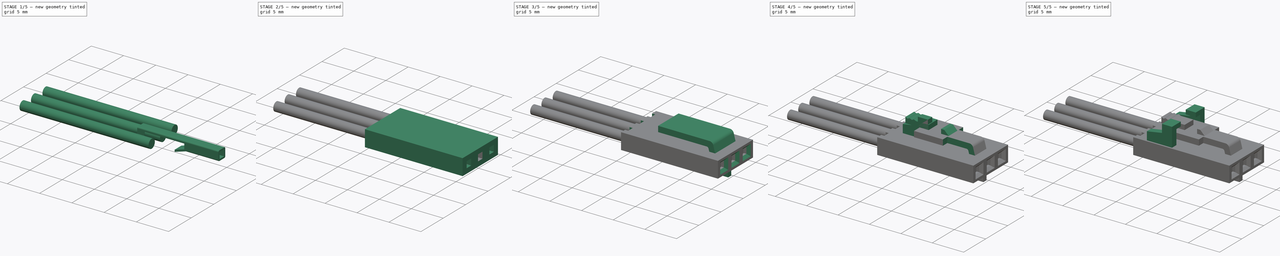
[diagram: build sequence overview — one tinted view per stage of 5, left to right]
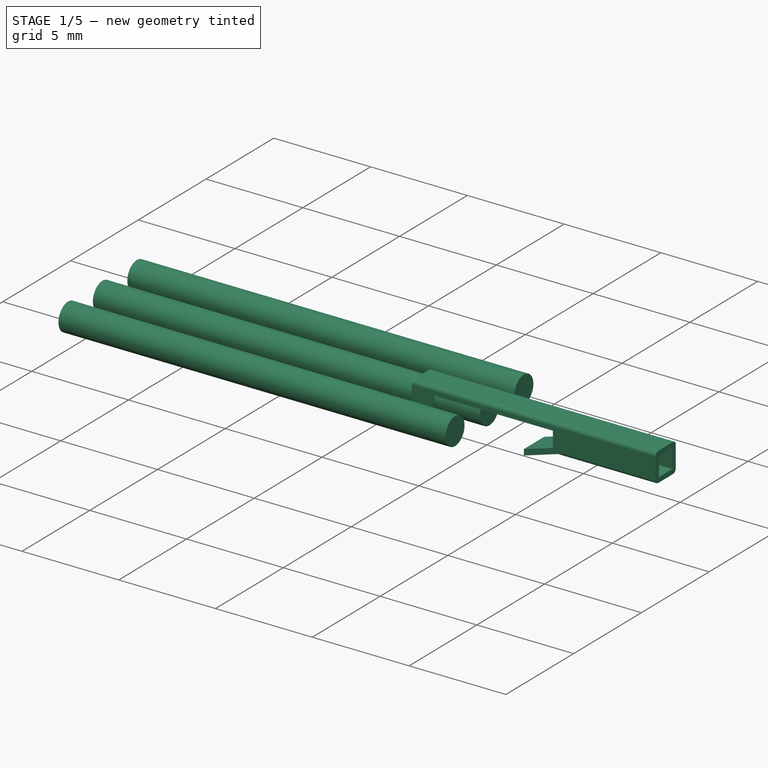
[diagram: stage 1 of 5 — iso view after this stage's code; geometry added in this stage tinted green]
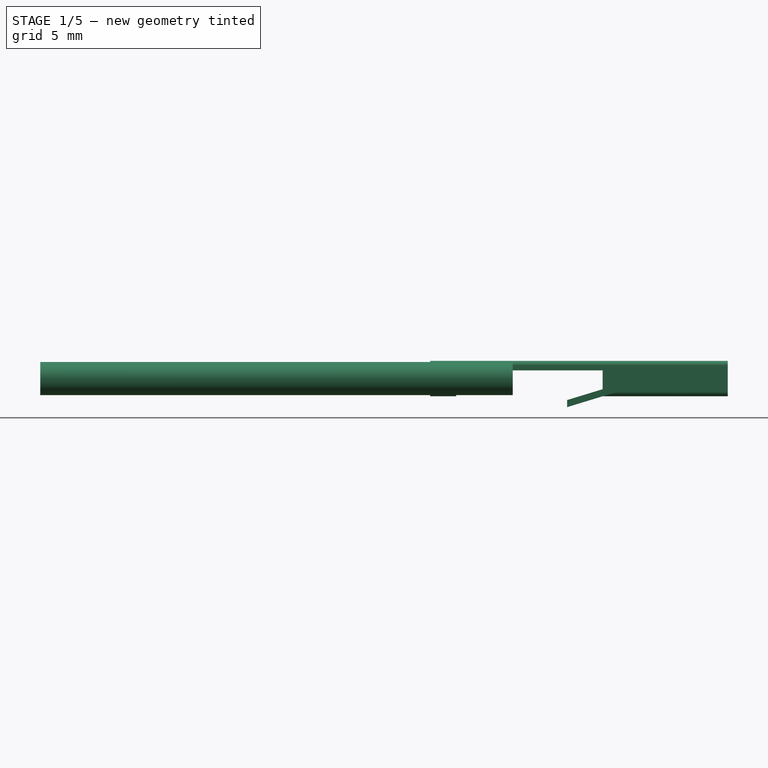
[diagram: stage 1 of 5 — front view after this stage's code; geometry added in this stage tinted green]
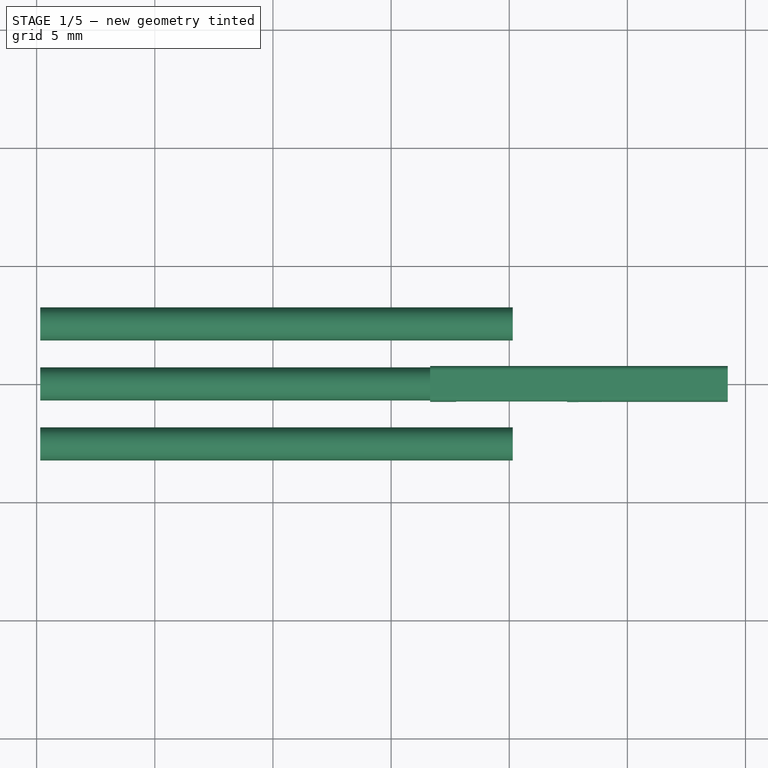
[diagram: stage 1 of 5 — top view after this stage's code; geometry added in this stage tinted green]
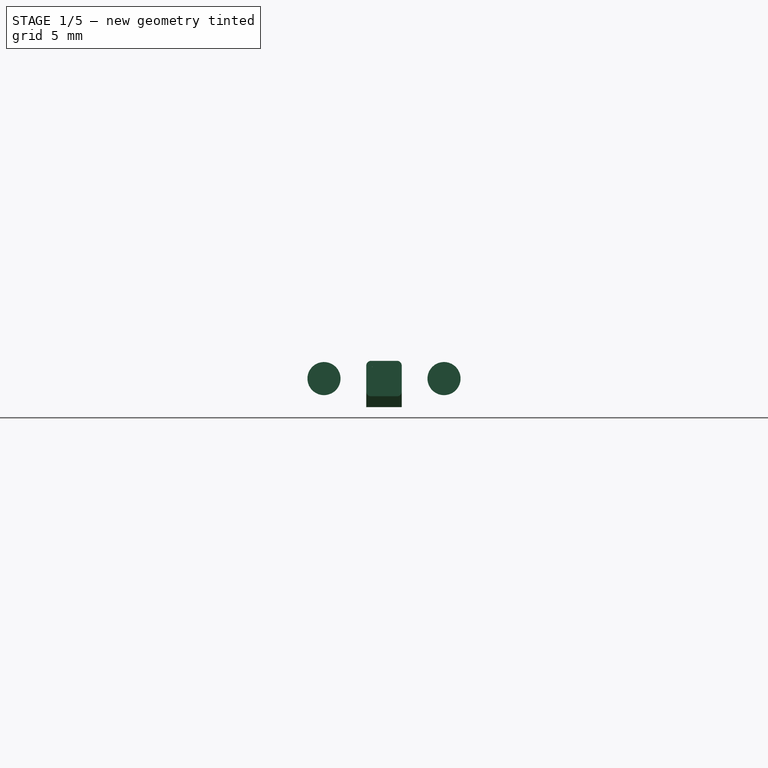
[diagram: stage 1 of 5 — right view after this stage's code; geometry added in this stage tinted green]
FCSTD DOCUMENT  (FreeCAD 0.16R6707 (Git))
Label: 3pin-buckled-female-2.54mm-connector
License: All rights reserved
LicenseURL: http://en.wikipedia.org/wiki/All_rights_reserved
objects: Sketcher::SketchObject×17, PartDesign::Pocket×9, Part::FeaturePython×9, PartDesign::Pad×8, App::DocumentObjectGroup×5, Part::MultiFuse×3, Part::Cylinder×3, Part::Mirroring×1, PartDesign::Chamfer×1, PartDesign::Fillet×1
note: 69 computed .brp shape members not serialized (recipe doc carries the construction recipe); baked Part::Feature solids carry a one-line shape summary decoded from their .brp

FEATURE [Sketcher::SketchObject] Sketch014
  Placement = pos=(0,0,0) rot=(-1,0,0;4.71239rad)
  sketch-geometry (11):
    g0: LineSegment StartX=8.95 StartY=-0.75 StartZ=0 EndX=14.25 EndY=-0.75 EndZ=0
    g1: LineSegment StartX=14.25 StartY=-0.75 StartZ=0 EndX=14.25 EndY=0.75 EndZ=0
    g2: LineSegment StartX=14.25 StartY=0.75 StartZ=0 EndX=1.65 EndY=0.75 EndZ=0
    g3: LineSegment StartX=1.65 StartY=0.75 StartZ=0 EndX=1.65 EndY=-0.75 EndZ=0
    g4: LineSegment StartX=1.65 StartY=-0.75 StartZ=0 EndX=2.75 EndY=-0.75 EndZ=0
    g5: LineSegment StartX=2.75 StartY=-0.75 StartZ=0 EndX=2.75 EndY=0.35 EndZ=0
    g6: LineSegment StartX=2.75 StartY=0.35 StartZ=0 EndX=8.95 EndY=0.35 EndZ=0
    g7: LineSegment StartX=8.95 StartY=0.35 StartZ=0 EndX=8.95 EndY=-0.45 EndZ=0
    g8: LineSegment StartX=8.95 StartY=-0.45 StartZ=0 EndX=7.45 EndY=-0.908596 EndZ=0
    g9: LineSegment StartX=7.45 StartY=-0.908596 StartZ=0 EndX=7.45 EndY=-1.2086 EndZ=0
    g10: LineSegment StartX=7.45 StartY=-1.2086 StartZ=0 EndX=8.95 EndY=-0.75 EndZ=0
  constraints (33):
    c: Horizontal(g0)
    c: Coincident(g0,g1)
    c: Vertical(g1)
    c: Coincident(g1,g2)
    c: Horizontal(g2)
    c: Coincident(g2,g3)
    c: Coincident(g3,g4)
    c: Horizontal(g4)
    c: Coincident(g4,g5)
    c: Coincident(g5,g6)
    c: Horizontal(g6)
    c: Coincident(g6,g7)
    c: Vertical(g7)
    c: Coincident(g7,g8)
    c: Coincident(g8,g9)
    c: Vertical(g9)
    c: Coincident(g9,g10)
    c: Coincident(g10,g0)
    c: DistanceY(g1,g1) = 1.5
    c: DistanceX(g2,g2) = 12.6
    c: Vertical(g3)
    c: Symmetric(g1,g0,g-1)
    c: PointOnObject(g0,g7)
    c: Parallel(g10,g8)
    c: DistanceY(g5,g2) = 0.4
    c: DistanceY(g3,g3) = 1.5
    c: Vertical(g5)
    c: DistanceX(g4,g4) = 1.1
    c: DistanceY(g0,g7) = 0.3
    c: DistanceX(g8,g7) = 1.5
    c: Angle(g10,g0) = 2.84489
    c: DistanceX(g4,g8) = 4.7
    c: DistanceX(g-1,g9) = 7.45
FEATURE [PartDesign::Pad] Pad007
  Length = 1.5
  Length2 = 100
  Midplane = true
  Placement = pos=(0,0,0) rot=(-1,0,0;4.71239rad)
  Sketch = -> Sketch014
  Type = 0
FEATURE [Sketcher::SketchObject] Sketch015
  ExternalGeometry = -> [Pad007]
  Placement = pos=(14.25,0,0) rot=(0.707107,0,0.707107;3.14159rad)
  Support = -> Pad007 [Face2]
  sketch-geometry (4):
    g0: LineSegment StartX=-0.5 StartY=0.5 StartZ=0 EndX=0.5 EndY=0.5 EndZ=0
    g1: LineSegment StartX=0.5 StartY=0.5 StartZ=0 EndX=0.5 EndY=-0.5 EndZ=0
    g2: LineSegment StartX=0.5 StartY=-0.5 StartZ=0 EndX=-0.5 EndY=-0.5 EndZ=0
    g3: LineSegment StartX=-0.5 StartY=-0.5 StartZ=0 EndX=-0.5 EndY=0.5 EndZ=0
  constraints (11):
    c: Coincident(g0,g1)
    c: Coincident(g1,g2)
    c: Coincident(g2,g3)
    c: Coincident(g3,g0)
    c: Horizontal(g0)
    c: Horizontal(g2)
    c: Vertical(g1)
    c: Vertical(g3)
    c: Symmetric(g0,g1,g-1)
    c: Equal(g3,g0)
    c: DistanceX(g-4,g0) = 0.25
FEATURE [PartDesign::Pocket] Pocket007
  Length = 5
  Placement = pos=(0,0,0) rot=(-1,0,0;4.71239rad)
  Sketch = -> Sketch015
  Type = 1
FEATURE [PartDesign::Fillet] Fillet  label="pin-final"
  Base = -> Pocket007 [Edge3,Edge4,Edge23,Edge15,Edge25,Edge17]
  Placement = pos=(0,0,0) rot=(-1,0,0;4.71239rad)
  Radius = 0.2
FEATURE [Part::FeaturePython] Clone005  label="pin1"  # Draft clone (typed FeaturePython)
  Objects = -> [Fillet]
  Placement = pos=(0,0,0) rot=(-1,0,0;4.71239rad)
  Scale = (1,1,1)
FEATURE [Part::Cylinder] Cylinder  label="vcc-wire"
  Angle = 360
  Height = 20
  Placement = pos=(5.15,0,0) rot=(0,-1,0;1.5708rad)
  Radius = 0.7
  expr: Radius = 1.4 / 2
FEATURE [Part::Cylinder] Cylinder001  label="vcc-signal"
  Angle = 360
  Height = 20
  Placement = pos=(5.15,2.54,0) rot=(0,-1,0;1.5708rad)
  Radius = 0.7
  expr: Radius = 1.4 / 2
FEATURE [Part::Cylinder] Cylinder002  label="wire-gnd"
  Angle = 360
  Height = 20
  Placement = pos=(5.15,-2.54,0) rot=(0,-1,0;1.5708rad)
  Radius = 0.7
  expr: Radius = 1.4 / 2
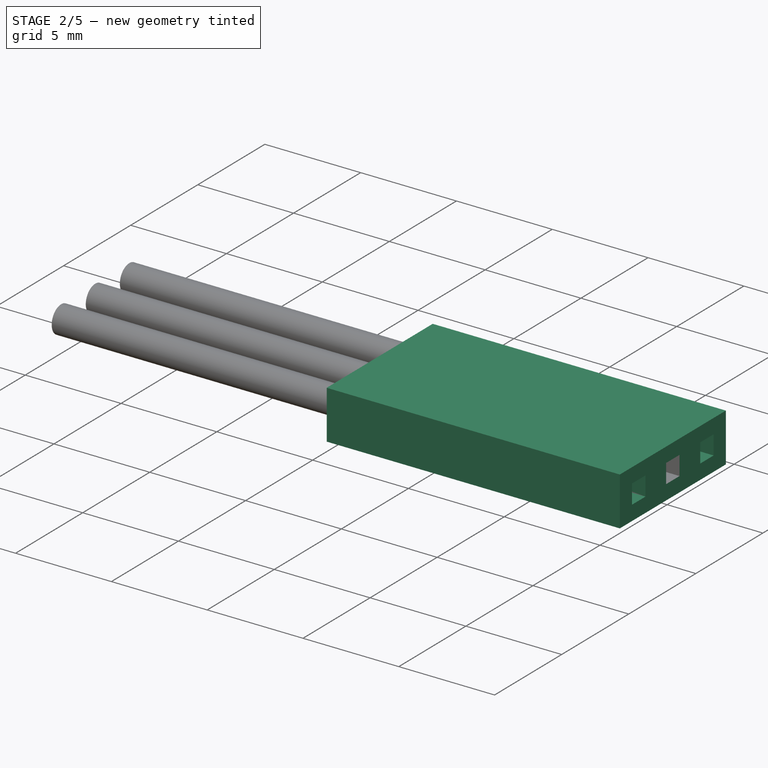
[diagram: stage 2 of 5 — iso view after this stage's code; geometry added in this stage tinted green]
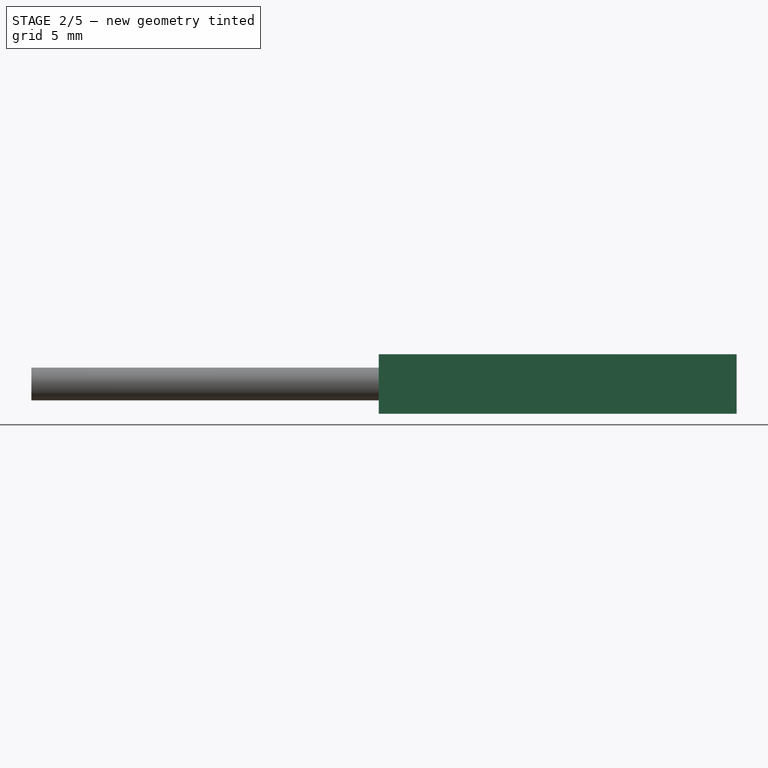
[diagram: stage 2 of 5 — front view after this stage's code; geometry added in this stage tinted green]
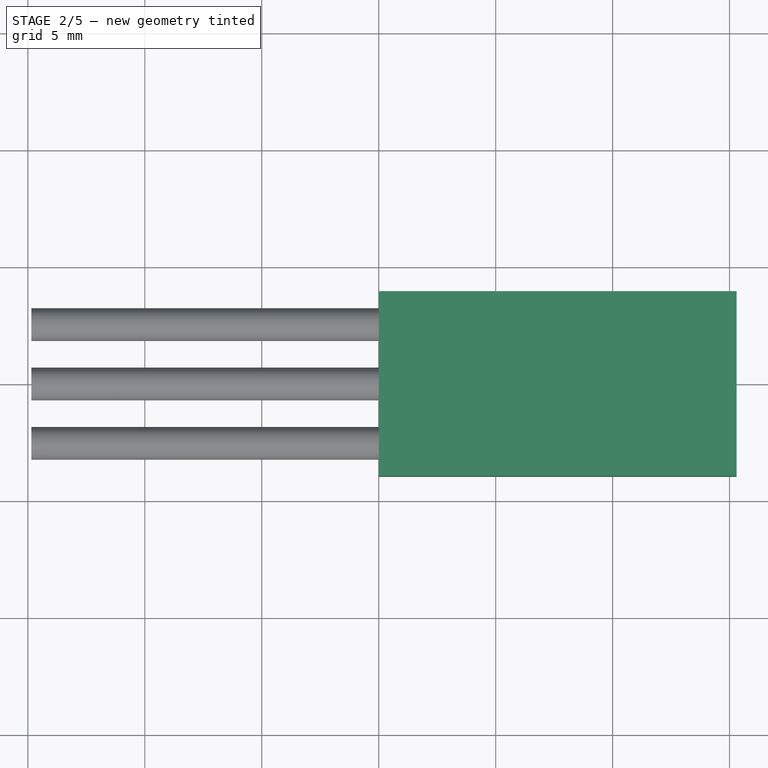
[diagram: stage 2 of 5 — top view after this stage's code; geometry added in this stage tinted green]
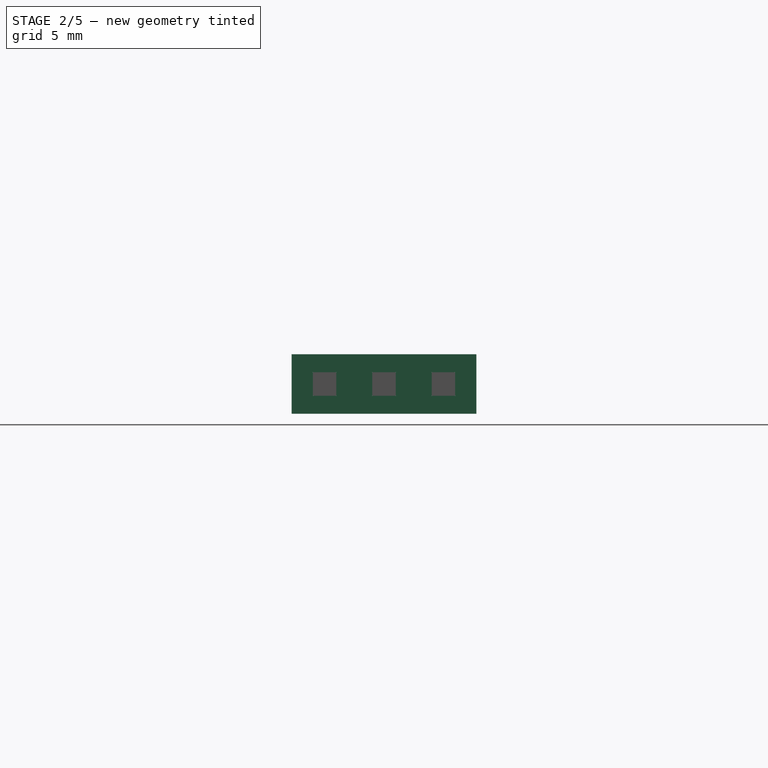
[diagram: stage 2 of 5 — right view after this stage's code; geometry added in this stage tinted green]
FEATURE [Sketcher::SketchObject] Sketch  label="Connector-body-sketch"
  sketch-geometry (4):
    g0: LineSegment StartX=0 StartY=3.95 StartZ=0 EndX=15.3 EndY=3.95 EndZ=0
    g1: LineSegment StartX=15.3 StartY=3.95 StartZ=0 EndX=15.3 EndY=-3.95 EndZ=0
    g2: LineSegment StartX=15.3 StartY=-3.95 StartZ=0 EndX=0 EndY=-3.95 EndZ=0
    g3: LineSegment StartX=0 StartY=-3.95 StartZ=0 EndX=0 EndY=3.95 EndZ=0
  constraints (12):
    c: Coincident(g0,g1)
    c: Coincident(g1,g2)
    c: Coincident(g2,g3)
    c: Coincident(g3,g0)
    c: Horizontal(g0)
    c: Horizontal(g2)
    c: Vertical(g1)
    c: Vertical(g3)
    c: PointOnObject(g0,g-2)
    c: Symmetric(g0,g2,g-1)
    c: DistanceY(g1,g1) = 7.9
    c: DistanceX(g0,g0) = 15.3
FEATURE [PartDesign::Pad] Pad  label="Connector-body1"
  Length = 2.54
  Length2 = 100
  Midplane = true
  Sketch = -> Sketch
  Type = 0
FEATURE [Sketcher::SketchObject] Sketch001  label="female-cutout-sketch"
  Placement = pos=(15.3,0,0) rot=(0.57735,0.57735,0.57735;2.0944rad)
  Support = -> Pad [Face2]
  sketch-geometry (13):
    g0: LineSegment StartX=-0.5 StartY=0.5 StartZ=0 EndX=0.5 EndY=0.5 EndZ=0
    g1: LineSegment StartX=0.5 StartY=0.5 StartZ=0 EndX=0.5 EndY=-0.5 EndZ=0
    g2: LineSegment StartX=0.5 StartY=-0.5 StartZ=0 EndX=-0.5 EndY=-0.5 EndZ=0
    g3: LineSegment StartX=-0.5 StartY=-0.5 StartZ=0 EndX=-0.5 EndY=0.5 EndZ=0
    g4: LineSegment StartX=-3.04 StartY=0.5 StartZ=0 EndX=-2.04 EndY=0.5 EndZ=0
    g5: LineSegment StartX=-2.04 StartY=0.5 StartZ=0 EndX=-2.04 EndY=-0.5 EndZ=0
    g6: LineSegment StartX=-2.04 StartY=-0.5 StartZ=0 EndX=-3.04 EndY=-0.5 EndZ=0
    g7: LineSegment StartX=-3.04 StartY=-0.5 StartZ=0 EndX=-3.04 EndY=0.5 EndZ=0
    g8: LineSegment StartX=2.04 StartY=0.5 StartZ=0 EndX=3.04 EndY=0.5 EndZ=0
    g9: LineSegment StartX=3.04 StartY=0.5 StartZ=0 EndX=3.04 EndY=-0.5 EndZ=0
    g10: LineSegment StartX=3.04 StartY=-0.5 StartZ=0 EndX=2.04 EndY=-0.5 EndZ=0
    g11: LineSegment StartX=2.04 StartY=-0.5 StartZ=0 EndX=2.04 EndY=0.5 EndZ=0
    g12: LineSegment [constr] StartX=-2.54 StartY=0.5 StartZ=0 EndX=-2.54 EndY=-0.5 EndZ=0
  constraints (38):
    c: Coincident(g0,g1)
    c: Coincident(g1,g2)
    c: Coincident(g2,g3)
    c: Coincident(g3,g0)
    c: Horizontal(g0)
    c: Horizontal(g2)
    c: Vertical(g1)
    c: Vertical(g3)
    c: Symmetric(g0,g1,g-1)
    c: Equal(g0,g1)
    c: DistanceY(g1,g1) = 1
    c: Coincident(g4,g5)
    c: Coincident(g5,g6)
    c: Coincident(g6,g7)
    c: Coincident(g7,g4)
    c: Horizontal(g4)
    c: Horizontal(g6)
    c: Vertical(g5)
    c: Vertical(g7)
    c: Coincident(g8,g9)
    c: Coincident(g9,g10)
    c: Coincident(g10,g11)
    c: Coincident(g11,g8)
    c: Horizontal(g8)
    c: Horizontal(g10)
    c: Vertical(g9)
    c: Vertical(g11)
    c: Equal(g4,g0)
    c: Equal(g0,g7)
    c: Symmetric(g4,g5,g-1)
    c: PointOnObject(g12,g4)
    c: PointOnObject(g12,g6)
    c: Vertical(g12)
    c: Symmetric(g4,g4,g12)
    c: DistanceX(g12,g-1) = 2.54
    c: Equal(g11,g8)
    c: Equal(g8,g0)
    c: Symmetric(g5,g10,g-2)
FEATURE [PartDesign::Pocket] Pocket  label="body2-with-female-holes"
  Length = 5
  Sketch = -> Sketch001
  Type = 1
FEATURE [Sketcher::SketchObject] Sketch010
  Placement = pos=(0,0,-1.27) rot=(1,0,0;3.14159rad)
  Support = -> Pocket [Face4]
  sketch-geometry (24):
    g0: LineSegment StartX=7.45 StartY=0.5 StartZ=0 EndX=8.9 EndY=0.5 EndZ=0
    g1: LineSegment StartX=8.9 StartY=0.5 StartZ=0 EndX=8.9 EndY=-0.5 EndZ=0
    g2: LineSegment StartX=8.9 StartY=-0.5 StartZ=0 EndX=7.45 EndY=-0.5 EndZ=0
    g3: LineSegment StartX=7.45 StartY=-0.5 StartZ=0 EndX=7.45 EndY=0.5 EndZ=0
    g4: LineSegment StartX=0.75 StartY=0.5 StartZ=0 EndX=1.45 EndY=0.5 EndZ=0
    g5: LineSegment StartX=1.45 StartY=0.5 StartZ=0 EndX=1.45 EndY=-0.5 EndZ=0
    g6: LineSegment StartX=1.45 StartY=-0.5 StartZ=0 EndX=0.75 EndY=-0.5 EndZ=0
    g7: LineSegment StartX=0.75 StartY=-0.5 StartZ=0 EndX=0.75 EndY=0.5 EndZ=0
    g8: LineSegment StartX=0.75 StartY=-2.05 StartZ=0 EndX=1.45 EndY=-2.05 EndZ=0
    g9: LineSegment StartX=1.45 StartY=-2.05 StartZ=0 EndX=1.45 EndY=-3.05 EndZ=0
    g10: LineSegment StartX=1.45 StartY=-3.05 StartZ=0 EndX=0.75 EndY=-3.05 EndZ=0
    g11: LineSegment StartX=0.75 StartY=-3.05 StartZ=0 EndX=0.75 EndY=-2.05 EndZ=0
    g12: LineSegment StartX=7.45 StartY=-2.05 StartZ=0 EndX=8.9 EndY=-2.05 EndZ=0
    g13: LineSegment StartX=8.9 StartY=-2.05 StartZ=0 EndX=8.9 EndY=-3.05 EndZ=0
    g14: LineSegment StartX=8.9 StartY=-3.05 StartZ=0 EndX=7.45 EndY=-3.05 EndZ=0
    g15: LineSegment StartX=7.45 StartY=-3.05 StartZ=0 EndX=7.45 EndY=-2.05 EndZ=0
    g16: LineSegment StartX=0.75 StartY=3.05 StartZ=0 EndX=1.45 EndY=3.05 EndZ=0
    g17: LineSegment StartX=1.45 StartY=3.05 StartZ=0 EndX=1.45 EndY=2.05 EndZ=0
    g18: LineSegment StartX=1.45 StartY=2.05 StartZ=0 EndX=0.75 EndY=2.05 EndZ=0
    g19: LineSegment StartX=0.75 StartY=2.05 StartZ=0 EndX=0.75 EndY=3.05 EndZ=0
    g20: LineSegment StartX=7.45 StartY=3.05 StartZ=0 EndX=8.9 EndY=3.05 EndZ=0
    g21: LineSegment StartX=8.9 StartY=3.05 StartZ=0 EndX=8.9 EndY=2.05 EndZ=0
    g22: LineSegment StartX=8.9 StartY=2.05 StartZ=0 EndX=7.45 EndY=2.05 EndZ=0
    g23: LineSegment StartX=7.45 StartY=2.05 StartZ=0 EndX=7.45 EndY=3.05 EndZ=0
  constraints (69):
    c: Coincident(g0,g1)
    c: Coincident(g1,g2)
    c: Coincident(g2,g3)
    c: Coincident(g3,g0)
    c: Horizontal(g0)
    c: Horizontal(g2)
    c: Vertical(g1)
    c: Vertical(g3)
    c: Coincident(g4,g5)
    c: Coincident(g5,g6)
    c: Coincident(g6,g7)
    c: Coincident(g7,g4)
    c: Horizontal(g4)
    c: Horizontal(g6)
    c: Vertical(g5)
    c: Vertical(g7)
    c: Symmetric(g0,g2,g-1)
    c: DistanceY(g1,g1) = 1
    c: DistanceX(g2,g2) = 1.45
    c: DistanceX(g4,g4) = 0.7
    c: Equal(g5,g1)
    c: Symmetric(g4,g5,g-1)
    c: DistanceX(g-1,g4) = 0.75
    c: DistanceX(g5,g2) = 6
    c: Coincident(g8,g9)
    c: Coincident(g9,g10)
    c: Coincident(g10,g11)
    c: Coincident(g11,g8)
    c: Horizontal(g8)
    c: Horizontal(g10)
    c: Vertical(g9)
    c: Vertical(g11)
    c: Coincident(g12,g13)
    c: Coincident(g13,g14)
    c: Coincident(g14,g15)
    c: Coincident(g15,g12)
    c: Horizontal(g12)
    c: Horizontal(g14)
    c: Vertical(g13)
    c: Vertical(g15)
    c: Equal(g2,g12)
    c: Equal(g1,g13)
    c: Equal(g13,g9)
    c: Equal(g11,g7)
    c: PointOnObject(g8,g7)
    c: Equal(g8,g6)
    c: PointOnObject(g12,g3)
    c: DistanceY(g12,g2) = 1.55
    c: PointOnObject(g8,g12)
    c: Coincident(g16,g17)
    c: Coincident(g17,g18)
    c: Coincident(g18,g19)
    c: Coincident(g19,g16)
    c: Horizontal(g16)
    c: Horizontal(g18)
    c: Vertical(g17)
    c: Vertical(g19)
    c: Coincident(g20,g21)
    c: Coincident(g21,g22)
    c: Coincident(g22,g23)
    c: Coincident(g23,g20)
    c: Horizontal(g20)
    c: Horizontal(g22)
    c: Vertical(g21)
    c: Vertical(g23)
    c: Symmetric(g21,g12,g-1)
    c: Symmetric(g20,g14,g-1)
    c: Symmetric(g16,g9,g-1)
    c: Symmetric(g18,g8,g-1)
FEATURE [PartDesign::Pocket] Pocket004  label="bottom-cutouts"
  Length = 5
  Sketch = -> Sketch010
  Type = 2
FEATURE [Part::FeaturePython] Clone006  label="pin2"  # Draft clone (typed FeaturePython)
  Objects = -> [Clone005]
  Placement = pos=(0,2.54,0) rot=(-1,0,0;4.71239rad)
  Scale = (1,1,1)
FEATURE [Part::FeaturePython] Clone007  label="pin3"  # Draft clone (typed FeaturePython)
  Objects = -> [Clone005]
  Placement = pos=(0,-2.54,0) rot=(-1,0,0;4.71239rad)
  Scale = (1,1,1)
FEATURE [Part::MultiFuse] Fusion002  label="pins-final"
  Shapes = -> [Clone005,Clone006,Clone007]
FEATURE [App::DocumentObjectGroup] Grupo004  label="Pins-src"
  Group = -> [Fillet,Pocket007,Pad007,Fusion002]
FEATURE [App::DocumentObjectGroup] Grupo  label="src"
  Group = -> [Grupo001,Grupo002,Grupo003,Grupo004,Fusion001]
FEATURE [Part::FeaturePython] Clone008  label="pins"  # Draft clone (typed FeaturePython)
  Objects = -> [Fusion002]
  Scale = (1,1,1)
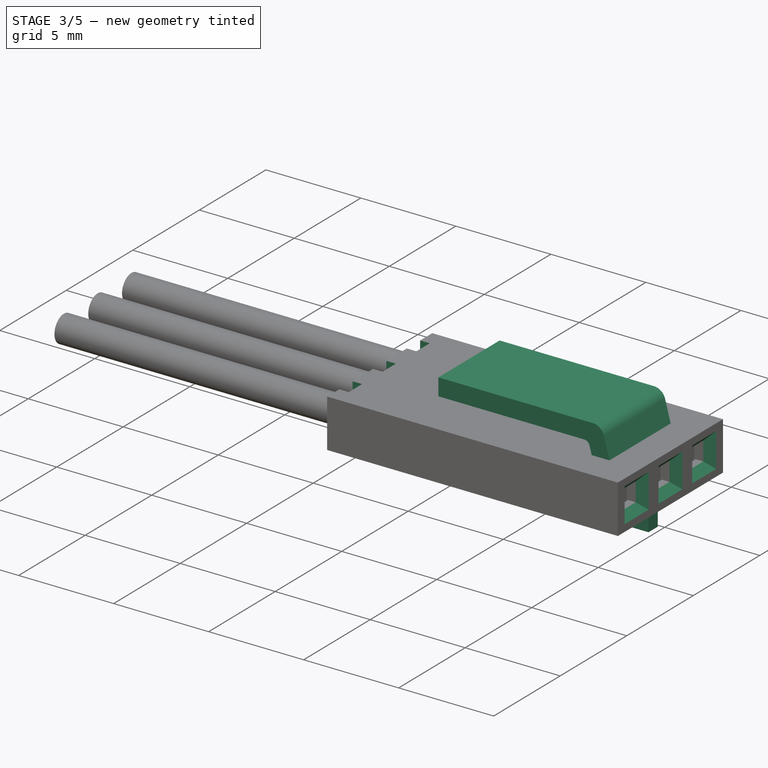
[diagram: stage 3 of 5 — iso view after this stage's code; geometry added in this stage tinted green]
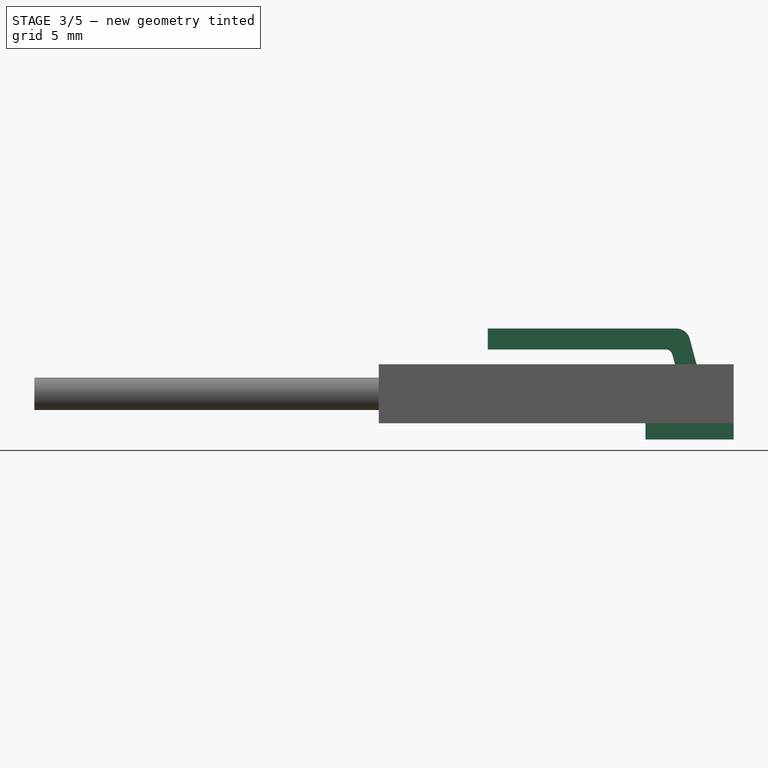
[diagram: stage 3 of 5 — front view after this stage's code; geometry added in this stage tinted green]
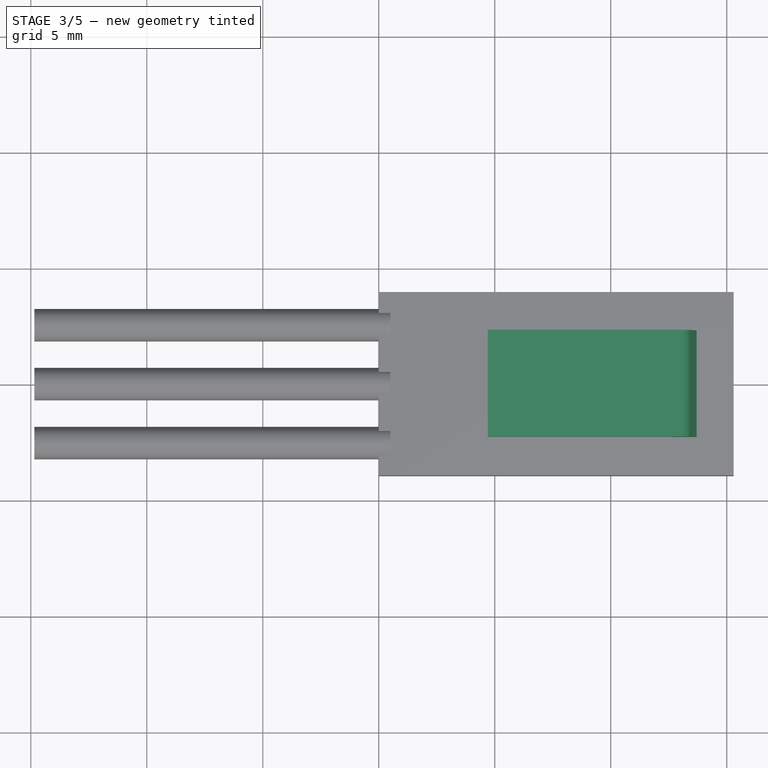
[diagram: stage 3 of 5 — top view after this stage's code; geometry added in this stage tinted green]
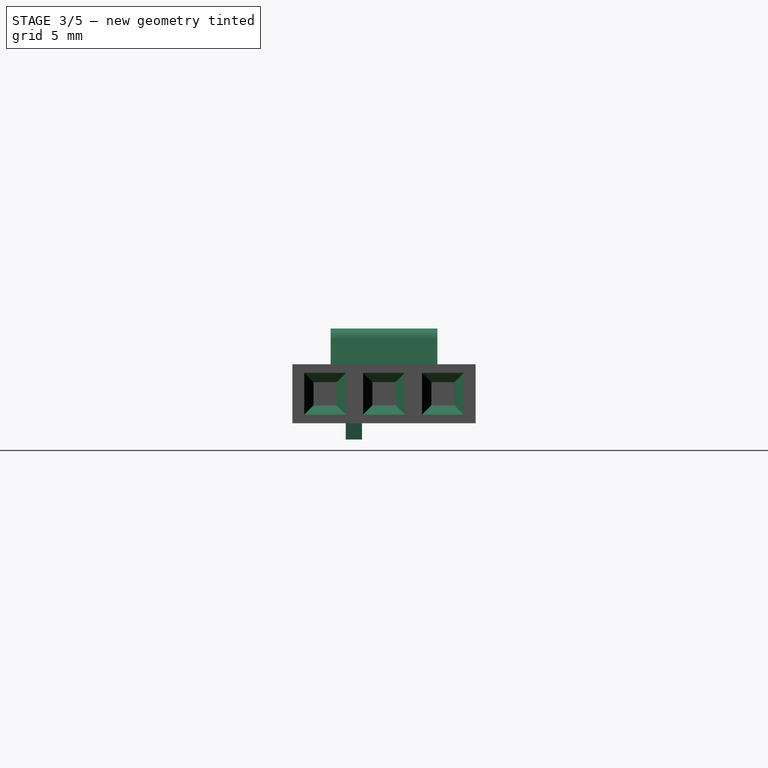
[diagram: stage 3 of 5 — right view after this stage's code; geometry added in this stage tinted green]
FEATURE [Sketcher::SketchObject] Sketch002  label="top-body-sketch"
  Placement = pos=(0,0,0) rot=(1,0,0;1.5708rad)
  expr: Constraints[24] = 2.54 / 2
  sketch-geometry (9):
    g0: LineSegment StartX=12.7683 StartY=1.27 StartZ=0 EndX=13.7 EndY=1.27 EndZ=0
    g1: LineSegment StartX=13.7 StartY=1.27 StartZ=0 EndX=13.4065 EndY=2.36529 EndZ=0
    g2: LineSegment StartX=12.827 StartY=2.81 StartZ=0 EndX=4.7 EndY=2.81 EndZ=0
    g3: LineSegment StartX=4.7 StartY=2.81 StartZ=0 EndX=4.7 EndY=1.91 EndZ=0
    g4: LineSegment StartX=4.7 StartY=1.91 StartZ=0 EndX=12.3666 EndY=1.91 EndZ=0
    g5: LineSegment StartX=12.6563 StartY=1.68765 StartZ=0 EndX=12.7683 EndY=1.27 EndZ=0
    g6: LineSegment [constr] StartX=12.7683 StartY=1.27 StartZ=0 EndX=13.6376 EndY=1.50294 EndZ=0
    g7: ArcOfCircle CenterX=12.3666 CenterY=1.61 CenterZ=0 NormalX=0 NormalY=0 NormalZ=1 Radius=0.3 StartAngle=0.261799 EndAngle=1.5708
    g8: ArcOfCircle CenterX=12.827 CenterY=2.21 CenterZ=0 NormalX=0 NormalY=0 NormalZ=1 Radius=0.6 StartAngle=0.261799 EndAngle=1.5708
  constraints (25):
    c: Coincident(g0,g1)
    c: Horizontal(g2)
    c: Coincident(g2,g3)
    c: Vertical(g3)
    c: Coincident(g3,g4)
    c: Horizontal(g4)
    c: Coincident(g5,g0)
    c: Parallel(g5,g1)
    c: DistanceY(g3,g3) = 0.9
    c: Perpendicular(g1,g6)
    c: Coincident(g6,g0)
    c: PointOnObject(g6,g1)
    c: Equal(g6,g3)
    c: Angle(g0,g6) = 0.261799
    c: Tangent(g4,g7) = 1.5708
    c: Tangent(g5,g7) = 1.5708
    c: Tangent(g1,g8) = -1.5708
    c: Tangent(g2,g8) = -1.5708
    c: Radius(g8) = 0.6
    c: Radius(g7) = 0.3
    c: DistanceX(g2,g0) = 9
    c: DistanceX(g-1,g0) = 13.7
    c: Horizontal(g0)
    c: DistanceY(g0,g2) = 1.54
    c: DistanceY(g-1,g0) = 1.27
FEATURE [PartDesign::Pad] Pad001  label="top-body"
  Length = 4.6
  Length2 = 100
  Midplane = true
  Placement = pos=(0,0,0) rot=(1,0,0;1.5708rad)
  Sketch = -> Sketch002
  Type = 0
FEATURE [Sketcher::SketchObject] Sketch011
  ExternalGeometry = -> [Pocket004]
  Placement = pos=(0,0,-1.27) rot=(1,0,0;3.14159rad)
  Support = -> Pocket004 [Face4]
  sketch-geometry (4):
    g0: LineSegment StartX=11.5 StartY=0.95 StartZ=0 EndX=15.3 EndY=0.95 EndZ=0
    g1: LineSegment StartX=15.3 StartY=0.95 StartZ=0 EndX=15.3 EndY=1.65 EndZ=0
    g2: LineSegment StartX=15.3 StartY=1.65 StartZ=0 EndX=11.5 EndY=1.65 EndZ=0
    g3: LineSegment StartX=11.5 StartY=1.65 StartZ=0 EndX=11.5 EndY=0.95 EndZ=0
  constraints (12):
    c: Coincident(g0,g1)
    c: Coincident(g1,g2)
    c: Coincident(g2,g3)
    c: Coincident(g3,g0)
    c: Horizontal(g0)
    c: Horizontal(g2)
    c: Vertical(g1)
    c: Vertical(g3)
    c: PointOnObject(g0,g-3)
    c: DistanceY(g3,g3) = 0.7
    c: DistanceX(g2,g2) = 3.8
    c: DistanceY(g1,g-3) = 2.3
FEATURE [PartDesign::Pad] Pad006  label="bottom-lid"
  Length = 0.7
  Length2 = 100
  Sketch = -> Sketch011
  Type = 0
FEATURE [Sketcher::SketchObject] Sketch012
  ExternalGeometry = -> [Pad006]
  Placement = pos=(0,0,-1.27) rot=(1,0,0;3.14159rad)
  Support = -> Pad006 [Face5]
  sketch-geometry (4):
    g0: LineSegment StartX=11.5 StartY=3.55 StartZ=0 EndX=11.5 EndY=1.85 EndZ=0
    g1: LineSegment StartX=11.5 StartY=1.85 StartZ=0 EndX=14.5 EndY=2.7 EndZ=0
    g2: LineSegment StartX=14.5 StartY=2.7 StartZ=0 EndX=11.5 EndY=3.55 EndZ=0
    g3: LineSegment [constr] StartX=11.5 StartY=2.7 StartZ=0 EndX=14.5 EndY=2.7 EndZ=0
  constraints (12):
    c: Vertical(g0)
    c: Coincident(g0,g1)
    c: Coincident(g1,g2)
    c: Coincident(g2,g0)
    c: PointOnObject(g0,g-3)
    c: PointOnObject(g3,g0)
    c: Coincident(g3,g1)
    c: Horizontal(g3)
    c: Symmetric(g0,g0,g3)
    c: DistanceX(g0,g1) = 3
    c: DistanceY(g0,g0) = 1.7
    c: DistanceY(g-3,g0) = 0.2
FEATURE [PartDesign::Pocket] Pocket005  label="bottom-arrow"
  Length = 0.01
  Sketch = -> Sketch012
  Type = 0
FEATURE [Sketcher::SketchObject] Sketch013
  ExternalGeometry = -> [Pocket005]
  Placement = pos=(0,0,1.27) rot=(0,0,1;0rad)
  Support = -> Pocket005 [Face8]
  sketch-geometry (12):
    g0: LineSegment StartX=0 StartY=3.04 StartZ=0 EndX=0.5 EndY=3.04 EndZ=0
    g1: LineSegment StartX=0.5 StartY=3.04 StartZ=0 EndX=0.5 EndY=2.04 EndZ=0
    g2: LineSegment StartX=0.5 StartY=2.04 StartZ=0 EndX=0 EndY=2.04 EndZ=0
    g3: LineSegment StartX=0 StartY=2.04 StartZ=0 EndX=0 EndY=3.04 EndZ=0
    g4: LineSegment StartX=0 StartY=0.5 StartZ=0 EndX=0.5 EndY=0.5 EndZ=0
    g5: LineSegment StartX=0.5 StartY=0.5 StartZ=0 EndX=0.5 EndY=-0.5 EndZ=0
    g6: LineSegment StartX=0.5 StartY=-0.5 StartZ=0 EndX=0 EndY=-0.5 EndZ=0
    g7: LineSegment StartX=0 StartY=-0.5 StartZ=0 EndX=0 EndY=0.5 EndZ=0
    g8: LineSegment StartX=0 StartY=-2.04 StartZ=0 EndX=0.5 EndY=-2.04 EndZ=0
    g9: LineSegment StartX=0.5 StartY=-2.04 StartZ=0 EndX=0.5 EndY=-3.04 EndZ=0
    g10: LineSegment StartX=0.5 StartY=-3.04 StartZ=0 EndX=0 EndY=-3.04 EndZ=0
    g11: LineSegment StartX=0 StartY=-3.04 StartZ=0 EndX=0 EndY=-2.04 EndZ=0
  constraints (33):
    c: Coincident(g0,g1)
    c: Coincident(g1,g2)
    c: Coincident(g2,g3)
    c: Coincident(g3,g0)
    c: Horizontal(g0)
    c: Horizontal(g2)
    c: Vertical(g1)
    c: Vertical(g3)
    c: Coincident(g0,g-3)
    c: Coincident(g2,g-3)
    c: Coincident(g4,g5)
    c: Coincident(g5,g6)
    c: Coincident(g6,g7)
    c: Coincident(g7,g4)
    c: Horizontal(g4)
    c: Horizontal(g6)
    c: Vertical(g5)
    c: Vertical(g7)
    c: Coincident(g6,g-4)
    c: Coincident(g4,g-4)
    c: Coincident(g8,g9)
    c: Coincident(g9,g10)
    c: Coincident(g10,g11)
    c: Coincident(g11,g8)
    c: Horizontal(g8)
    c: Horizontal(g10)
    c: Vertical(g9)
    c: Vertical(g11)
    c: Symmetric(g8,g2,g-1)
    c: DistanceX(g6,g6) = 0.5
    c: Equal(g4,g2)
    c: PointOnObject(g8,g5)
    c: Equal(g9,g1)
FEATURE [PartDesign::Pocket] Pocket006  label="top-cutouts"
  Length = 5
  Sketch = -> Sketch013
  Type = 2
FEATURE [PartDesign::Chamfer] Chamfer  label="body-1"
  Base = -> Pocket006 [Edge18,Edge19,Edge20,Edge21,Edge15,Edge14,Edge17,Edge16,Edge24,Edge23,Edge22,Edge25]
  Size = 0.4
FEATURE [Sketcher::SketchObject] Sketch016
  Placement = pos=(0,0,0) rot=(0.57735,-0.57735,-0.57735;2.0944rad)
  Support = -> Chamfer [Face26]
  sketch-geometry (13):
    g0: LineSegment StartX=-0.8 StartY=0.8 StartZ=0 EndX=0.8 EndY=0.8 EndZ=0
    g1: LineSegment StartX=0.8 StartY=0.8 StartZ=0 EndX=0.8 EndY=-0.8 EndZ=0
    g2: LineSegment StartX=0.8 StartY=-0.8 StartZ=0 EndX=-0.8 EndY=-0.8 EndZ=0
    g3: LineSegment StartX=-0.8 StartY=-0.8 StartZ=0 EndX=-0.8 EndY=0.8 EndZ=0
    g4: LineSegment StartX=-3.34 StartY=0.8 StartZ=0 EndX=-1.74 EndY=0.8 EndZ=0
    g5: LineSegment StartX=-1.74 StartY=0.8 StartZ=0 EndX=-1.74 EndY=-0.8 EndZ=0
    g6: LineSegment StartX=-1.74 StartY=-0.8 StartZ=0 EndX=-3.34 EndY=-0.8 EndZ=0
    g7: LineSegment StartX=-3.34 StartY=-0.8 StartZ=0 EndX=-3.34 EndY=0.8 EndZ=0
    g8: LineSegment StartX=1.74 StartY=0.8 StartZ=0 EndX=3.34 EndY=0.8 EndZ=0
    g9: LineSegment StartX=3.34 StartY=0.8 StartZ=0 EndX=3.34 EndY=-0.8 EndZ=0
    g10: LineSegment StartX=3.34 StartY=-0.8 StartZ=0 EndX=1.74 EndY=-0.8 EndZ=0
    g11: LineSegment StartX=1.74 StartY=-0.8 StartZ=0 EndX=1.74 EndY=0.8 EndZ=0
    g12: LineSegment [constr] StartX=-2.54 StartY=0.8 StartZ=0 EndX=-2.54 EndY=-0.8 EndZ=0
  constraints (38):
    c: Coincident(g0,g1)
    c: Coincident(g1,g2)
    c: Coincident(g2,g3)
    c: Coincident(g3,g0)
    c: Horizontal(g0)
    c: Horizontal(g2)
    c: Vertical(g1)
    c: Vertical(g3)
    c: Symmetric(g0,g1,g-1)
    c: Equal(g3,g0)
    c: DistanceX(g0,g0) = 1.6
    c: Coincident(g4,g5)
    c: Coincident(g5,g6)
    c: Coincident(g6,g7)
    c: Coincident(g7,g4)
    c: Horizontal(g6)
    c: Vertical(g5)
    c: Vertical(g7)
    c: Coincident(g8,g9)
    c: Coincident(g9,g10)
    c: Coincident(g10,g11)
    c: Coincident(g11,g8)
    c: Horizontal(g8)
    c: Horizontal(g10)
    c: Vertical(g9)
    c: Vertical(g11)
    c: Equal(g4,g0)
    c: Equal(g0,g8)
    c: Equal(g7,g3)
    c: Equal(g3,g11)
    c: PointOnObject(g4,g0)
    c: PointOnObject(g8,g0)
    c: Symmetric(g5,g10,g-2)
    c: PointOnObject(g12,g4)
    c: PointOnObject(g12,g6)
    c: Vertical(g12)
    c: Symmetric(g4,g4,g12)
    c: DistanceX(g12,g-1) = 2.54
FEATURE [PartDesign::Pocket] Pocket008  label="body-2"
  Length = 14.5
  Sketch = -> Sketch016
  Type = 0
FEATURE [App::DocumentObjectGroup] Grupo001  label="body-src"
  Group = -> [Pad,Pocket,Pocket004,Pad006,Pocket005,Pocket006,Chamfer,Pocket008]
FEATURE [Part::FeaturePython] Clone003  label="body"  # Draft clone (typed FeaturePython)
  Objects = -> [Pocket008]
  Scale = (1,1,1)
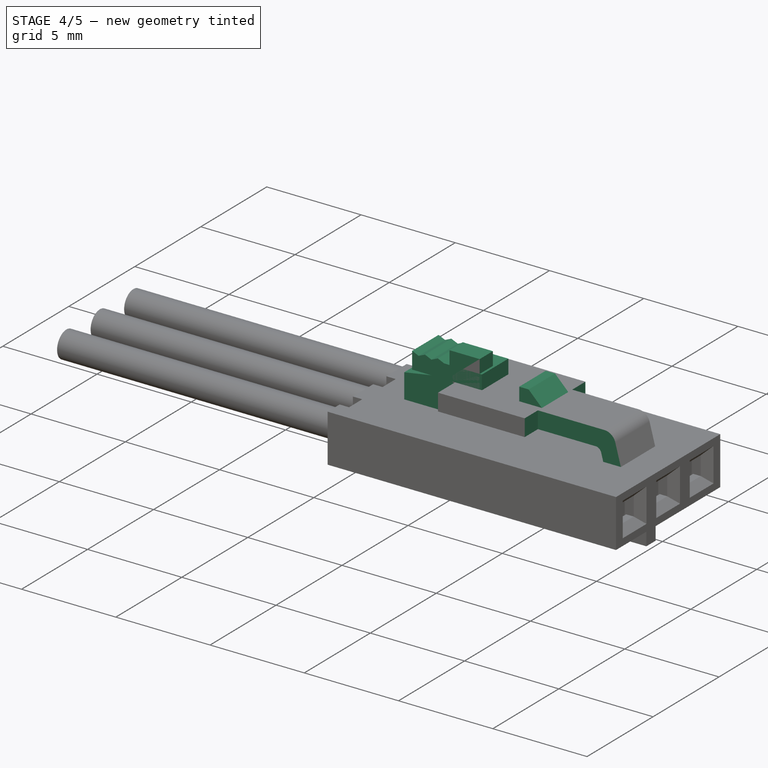
[diagram: stage 4 of 5 — iso view after this stage's code; geometry added in this stage tinted green]
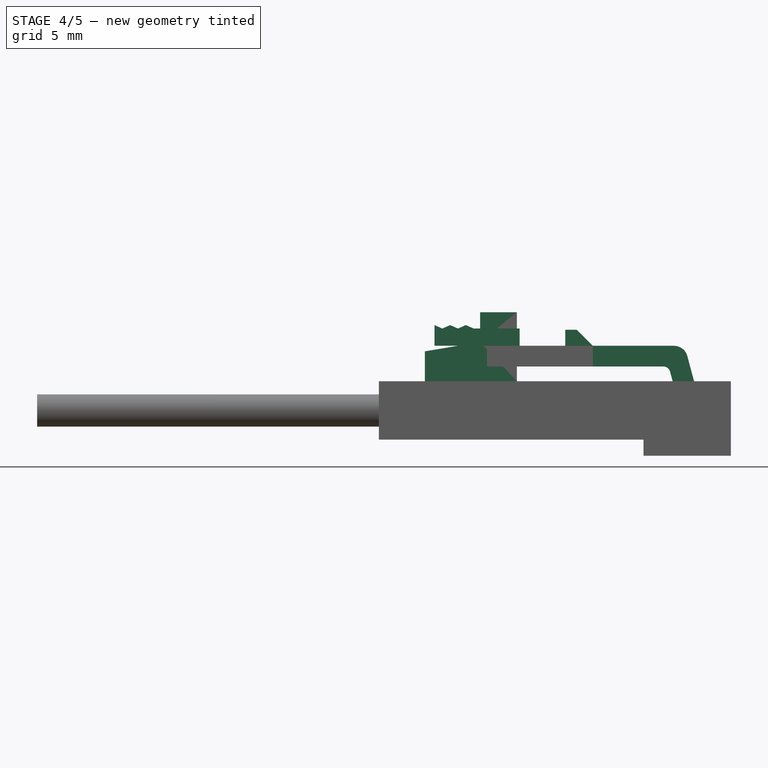
[diagram: stage 4 of 5 — front view after this stage's code; geometry added in this stage tinted green]
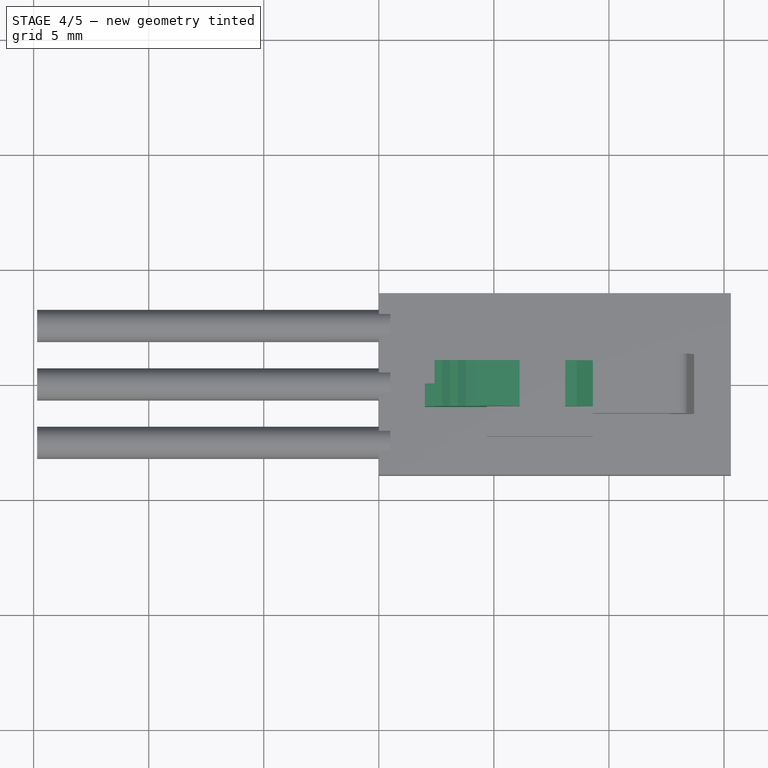
[diagram: stage 4 of 5 — top view after this stage's code; geometry added in this stage tinted green]
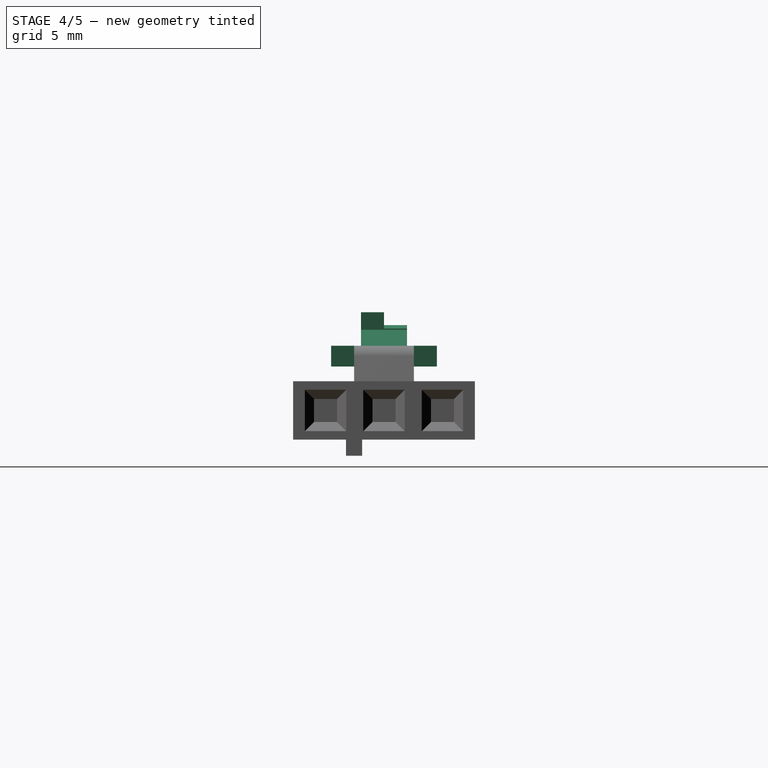
[diagram: stage 4 of 5 — right view after this stage's code; geometry added in this stage tinted green]
FEATURE [Sketcher::SketchObject] Sketch003  label="Top-body-cutouts-sketch"
  ExternalGeometry = -> [Pad001]
  Placement = pos=(0,0,2.81) rot=(0,0,1;3.14159rad)
  Support = -> Pad001 [Face5]
  sketch-geometry (8):
    g0: LineSegment StartX=-13.7 StartY=2.3 StartZ=0 EndX=-9.3 EndY=2.3 EndZ=0
    g1: LineSegment StartX=-9.3 StartY=2.3 StartZ=0 EndX=-9.3 EndY=1.3 EndZ=0
    g2: LineSegment StartX=-9.3 StartY=1.3 StartZ=0 EndX=-13.7 EndY=1.3 EndZ=0
    g3: LineSegment StartX=-13.7 StartY=1.3 StartZ=0 EndX=-13.7 EndY=2.3 EndZ=0
    g4: LineSegment StartX=-13.7 StartY=-1.3 StartZ=0 EndX=-9.3 EndY=-1.3 EndZ=0
    g5: LineSegment StartX=-9.3 StartY=-1.3 StartZ=0 EndX=-9.3 EndY=-2.3 EndZ=0
    g6: LineSegment StartX=-9.3 StartY=-2.3 StartZ=0 EndX=-13.7 EndY=-2.3 EndZ=0
    g7: LineSegment StartX=-13.7 StartY=-2.3 StartZ=0 EndX=-13.7 EndY=-1.3 EndZ=0
  constraints (21):
    c: Coincident(g0,g1)
    c: Coincident(g1,g2)
    c: Coincident(g2,g3)
    c: Coincident(g3,g0)
    c: Horizontal(g0)
    c: Horizontal(g2)
    c: Vertical(g1)
    c: Vertical(g3)
    c: Coincident(g0,g-4)
    c: DistanceY(g1,g1) = 1
    c: DistanceX(g2,g2) = 4.4
    c: Coincident(g4,g5)
    c: Coincident(g5,g6)
    c: Coincident(g6,g7)
    c: Coincident(g7,g4)
    c: Horizontal(g4)
    c: Horizontal(g6)
    c: Vertical(g5)
    c: Vertical(g7)
    c: Symmetric(g2,g4,g-1)
    c: Symmetric(g5,g0,g-1)
FEATURE [PartDesign::Pocket] Pocket001  label="top-body-cutouts"
  Length = 5
  Placement = pos=(0,0,0) rot=(1,0,0;1.5708rad)
  Sketch = -> Sketch003
  Type = 1
FEATURE [Sketcher::SketchObject] Sketch004
  Placement = pos=(0,0,2.81) rot=(0,0,1;3.14159rad)
  Support = -> Pocket001 [Face8]
  sketch-geometry (4):
    g0: LineSegment StartX=-6.12057 StartY=1 StartZ=0 EndX=-2.42057 EndY=1 EndZ=0
    g1: LineSegment StartX=-2.42057 StartY=1 StartZ=0 EndX=-2.42057 EndY=-1 EndZ=0
    g2: LineSegment StartX=-2.42057 StartY=-1 StartZ=0 EndX=-6.12057 EndY=-1 EndZ=0
    g3: LineSegment StartX=-6.12057 StartY=-1 StartZ=0 EndX=-6.12057 EndY=1 EndZ=0
  constraints (11):
    c: Coincident(g0,g1)
    c: Coincident(g1,g2)
    c: Coincident(g2,g3)
    c: Coincident(g3,g0)
    c: Horizontal(g0)
    c: Horizontal(g2)
    c: Vertical(g1)
    c: Vertical(g3)
    c: Symmetric(g0,g1,g-1)
    c: DistanceX(g0,g0) = 3.7
    c: DistanceY(g3,g3) = 2
FEATURE [PartDesign::Pad] Pad002  label="top-back-body"
  Length = 0.9
  Length2 = 100
  Placement = pos=(0,0,0) rot=(1,0,0;1.5708rad)
  Sketch = -> Sketch004
  Type = 0
FEATURE [Sketcher::SketchObject] Sketch005
  ExternalGeometry = -> [Pad002]
  Placement = pos=(0,-1,0) rot=(1,0,0;1.5708rad)
  Support = -> Pad002 [Face16]
  sketch-geometry (13):
    g0: LineSegment StartX=2.42057 StartY=3.71 StartZ=0 EndX=2.76057 EndY=3.56 EndZ=0
    g1: LineSegment StartX=2.76057 StartY=3.56 StartZ=0 EndX=3.10057 EndY=3.71 EndZ=0
    g2: LineSegment StartX=3.10057 StartY=3.71 StartZ=0 EndX=3.44057 EndY=3.56 EndZ=0
    g3: LineSegment StartX=3.44057 StartY=3.56 StartZ=0 EndX=3.78057 EndY=3.71 EndZ=0
    g4: LineSegment StartX=3.78057 StartY=3.71 StartZ=0 EndX=4.12057 EndY=3.56 EndZ=0
    g5: LineSegment StartX=4.12057 StartY=3.56 StartZ=0 EndX=6.12057 EndY=3.56 EndZ=0
    g6: LineSegment StartX=6.12057 StartY=3.71 StartZ=0 EndX=6.12057 EndY=3.56 EndZ=0
    g7: LineSegment [constr] StartX=2.76057 StartY=3.56 StartZ=0 EndX=3.44057 EndY=3.56 EndZ=0
    g8: LineSegment [constr] StartX=3.44057 StartY=3.56 StartZ=0 EndX=4.12057 EndY=3.56 EndZ=0
    g9: LineSegment [constr] StartX=3.10057 StartY=3.71 StartZ=0 EndX=3.10057 EndY=3.56 EndZ=0
    g10: LineSegment StartX=2.42057 StartY=3.71 StartZ=0 EndX=2.42057 EndY=3.81 EndZ=0
    g11: LineSegment StartX=2.42057 StartY=3.81 StartZ=0 EndX=6.12057 EndY=3.81 EndZ=0
    g12: LineSegment StartX=6.12057 StartY=3.81 StartZ=0 EndX=6.12057 EndY=3.71 EndZ=0
  constraints (35):
    c: Coincident(g0,g-3)
    c: Coincident(g0,g1)
    c: PointOnObject(g1,g-3)
    c: Coincident(g1,g2)
    c: Coincident(g2,g3)
    c: PointOnObject(g3,g-3)
    c: Coincident(g3,g4)
    c: Coincident(g4,g5)
    c: Horizontal(g5)
    c: DistanceX(g0,g4) = 1.7
    c: Coincident(g6,g-3)
    c: Coincident(g5,g6)
    c: Vertical(g6)
    c: DistanceY(g6,g6) = 0.15
    c: PointOnObject(g2,g5)
    c: PointOnObject(g0,g5)
    c: Coincident(g7,g0)
    c: Coincident(g7,g2)
    c: Coincident(g8,g2)
    c: Coincident(g8,g4)
    c: Parallel(g0,g2)
    c: Parallel(g2,g4)
    c: Parallel(g1,g3)
    c: Coincident(g9,g1)
    c: PointOnObject(g9,g7)
    c: Vertical(g9)
    c: Symmetric(g0,g2,g9)
    c: Coincident(g0,g10)
    c: Vertical(g10)
    c: Coincident(g10,g11)
    c: Horizontal(g11)
    c: Coincident(g11,g12)
    c: Coincident(g12,g6)
    c: Vertical(g12)
    c: DistanceY(g12,g12) = 0.1
FEATURE [PartDesign::Pocket] Pocket002  label="top-back-part"
  Length = 5
  Placement = pos=(0,0,0) rot=(1,0,0;1.5708rad)
  Sketch = -> Sketch005
  Type = 1
FEATURE [Sketcher::SketchObject] Sketch006
  ExternalGeometry = -> [Pocket002]
  Placement = pos=(0,-2.3,0) rot=(1,0,0;1.5708rad)
  Support = -> Pocket002 [Face17]
  sketch-geometry (4):
    g0: LineSegment StartX=9.3 StartY=2.81 StartZ=0 EndX=8.1 EndY=2.81 EndZ=0
    g1: LineSegment StartX=8.1 StartY=2.81 StartZ=0 EndX=8.1 EndY=3.51 EndZ=0
    g2: LineSegment StartX=8.1 StartY=3.51 StartZ=0 EndX=8.6 EndY=3.51 EndZ=0
    g3: LineSegment StartX=8.6 StartY=3.51 StartZ=0 EndX=9.3 EndY=2.81 EndZ=0
  constraints (11):
    c: Coincident(g-3,g0)
    c: PointOnObject(g0,g-3)
    c: Coincident(g0,g1)
    c: Vertical(g1)
    c: Coincident(g1,g2)
    c: Horizontal(g2)
    c: Coincident(g2,g3)
    c: Coincident(g3,g0)
    c: DistanceX(g0,g0) = 1.2
    c: DistanceX(g2,g2) = 0.5
    c: DistanceY(g1,g1) = 0.7
FEATURE [PartDesign::Pad] Pad003  label="top-front-lid"
  Length = 3.3
  Length2 = 100
  Placement = pos=(0,0,0) rot=(1,0,0;1.5708rad)
  Reversed = true
  Sketch = -> Sketch006
  Type = 0
FEATURE [Sketcher::SketchObject] Sketch007
  ExternalGeometry = -> [Pad003]
  Placement = pos=(0,0,3.51) rot=(0,0,1;3.14159rad)
  Support = -> Pad003 [Face28]
  sketch-geometry (4):
    g0: LineSegment StartX=-9.3 StartY=2.3 StartZ=0 EndX=-8.1 EndY=2.3 EndZ=0
    g1: LineSegment StartX=-8.1 StartY=2.3 StartZ=0 EndX=-8.1 EndY=1 EndZ=0
    g2: LineSegment StartX=-8.1 StartY=1 StartZ=0 EndX=-9.3 EndY=1 EndZ=0
    g3: LineSegment StartX=-9.3 StartY=1 StartZ=0 EndX=-9.3 EndY=2.3 EndZ=0
  constraints (11):
    c: Coincident(g0,g1)
    c: Coincident(g1,g2)
    c: Coincident(g2,g3)
    c: Coincident(g3,g0)
    c: Horizontal(g0)
    c: Horizontal(g2)
    c: Vertical(g1)
    c: Vertical(g3)
    c: Coincident(g0,g-3)
    c: PointOnObject(g1,g-4)
    c: DistanceY(g-4,g1) = 2
FEATURE [PartDesign::Pocket] Pocket003  label="top-front-lid-cutout1"
  Length = 0
  Placement = pos=(0,0,0) rot=(1,0,0;1.5708rad)
  Sketch = -> Sketch007
  Type = 3
  UpToFace = -> Pad003 [Face8]
FEATURE [App::DocumentObjectGroup] Grupo002  label="top-part-src"
  Group = -> [Pad001,Pocket001,Pad002,Pocket002,Pad003,Pocket003]
FEATURE [Sketcher::SketchObject] Sketch008  label="top-side-body-sketch"
  Placement = pos=(0,0,0) rot=(-1,0,0;4.71239rad)
  expr: Constraints[16] = 2.54 / 2
  sketch-geometry (6):
    g0: LineSegment StartX=2 StartY=1.27 StartZ=0 EndX=2 EndY=2.57 EndZ=0
    g1: LineSegment StartX=2 StartY=2.57 StartZ=0 EndX=4.4 EndY=2.97 EndZ=0
    g2: LineSegment StartX=4.4 StartY=2.97 StartZ=0 EndX=4.4 EndY=4.27 EndZ=0
    g3: LineSegment StartX=4.4 StartY=4.27 StartZ=0 EndX=6 EndY=4.27 EndZ=0
    g4: LineSegment StartX=6 StartY=4.27 StartZ=0 EndX=6 EndY=1.27 EndZ=0
    g5: LineSegment StartX=6 StartY=1.27 StartZ=0 EndX=2 EndY=1.27 EndZ=0
  constraints (18):
    c: Coincident(g0,g1)
    c: Coincident(g1,g2)
    c: Vertical(g2)
    c: Coincident(g2,g3)
    c: Coincident(g3,g4)
    c: Vertical(g4)
    c: Coincident(g4,g5)
    c: Coincident(g5,g0)
    c: Vertical(g0)
    c: Horizontal(g5)
    c: Horizontal(g3)
    c: DistanceX(g5,g5) = 4
    c: DistanceY(g4,g4) = 3
    c: DistanceX(g3,g3) = 1.6
    c: DistanceY(g2,g2) = 1.3
    c: DistanceY(g0,g0) = 1.3
    c: DistanceY(g-1,g0) = 1.27
    c: DistanceX(g-1,g0) = 2
FEATURE [PartDesign::Pad] Pad004
  Length = 1
  Length2 = 100
  Placement = pos=(0,0,0) rot=(-1,0,0;4.71239rad)
  Sketch = -> Sketch008
  Type = 0
FEATURE [Part::FeaturePython] Clone002  label="top-part"  # Draft clone (typed FeaturePython)
  Objects = -> [Pocket003]
  Placement = pos=(0,0,0) rot=(1,0,0;1.5708rad)
  Scale = (1,1,1)
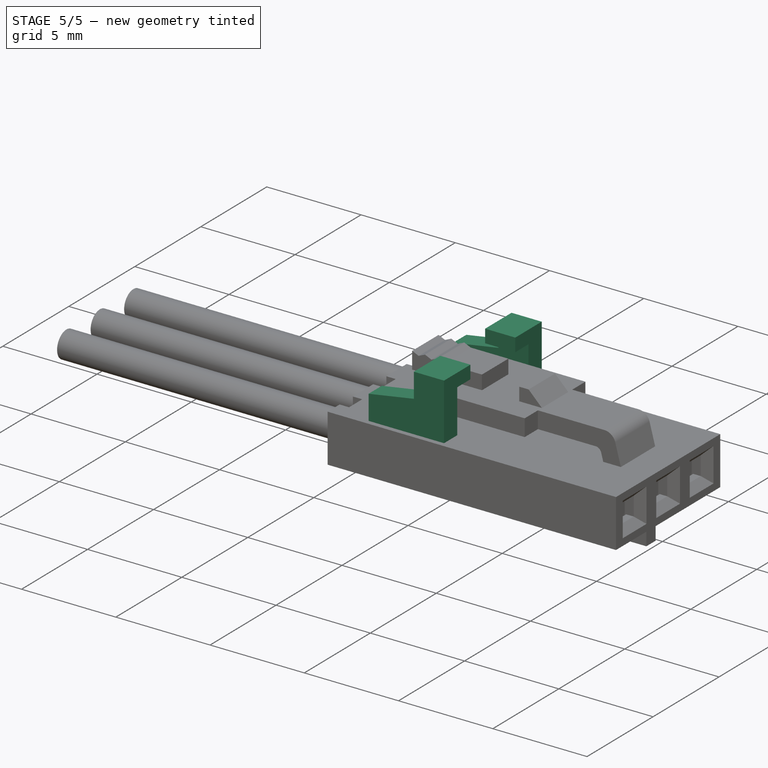
[diagram: stage 5 of 5 — iso view after this stage's code; geometry added in this stage tinted green]
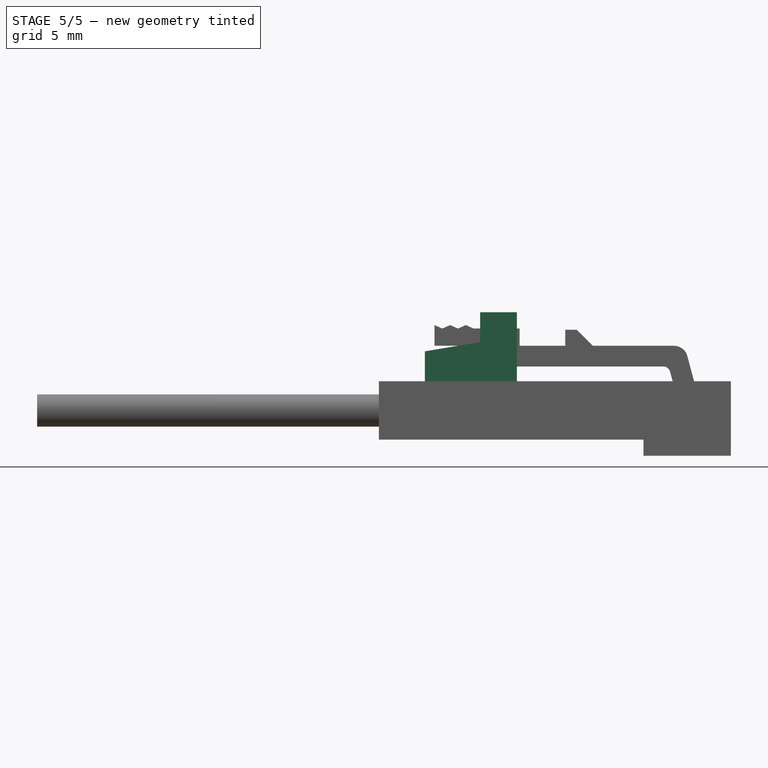
[diagram: stage 5 of 5 — front view after this stage's code; geometry added in this stage tinted green]
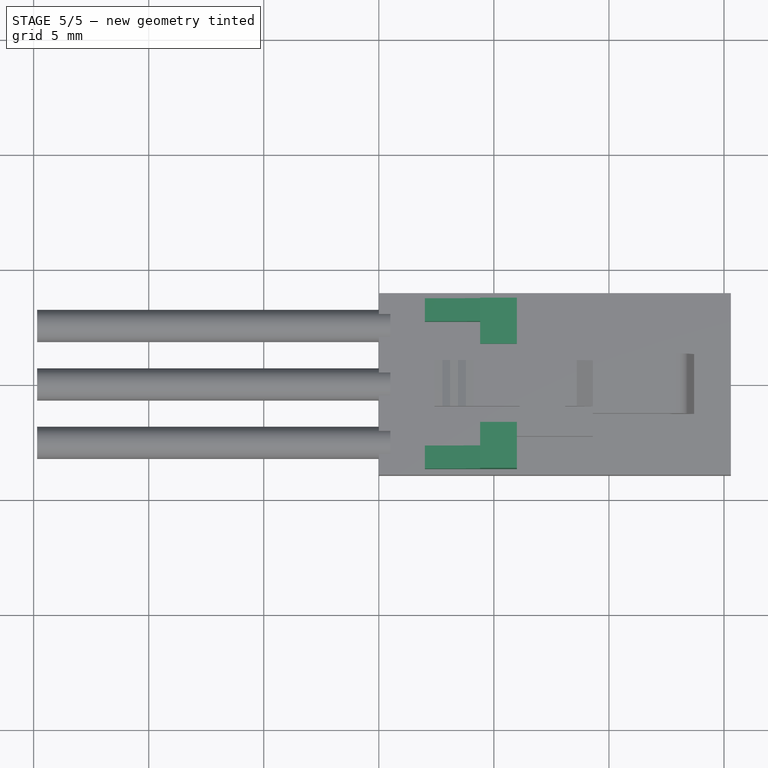
[diagram: stage 5 of 5 — top view after this stage's code; geometry added in this stage tinted green]
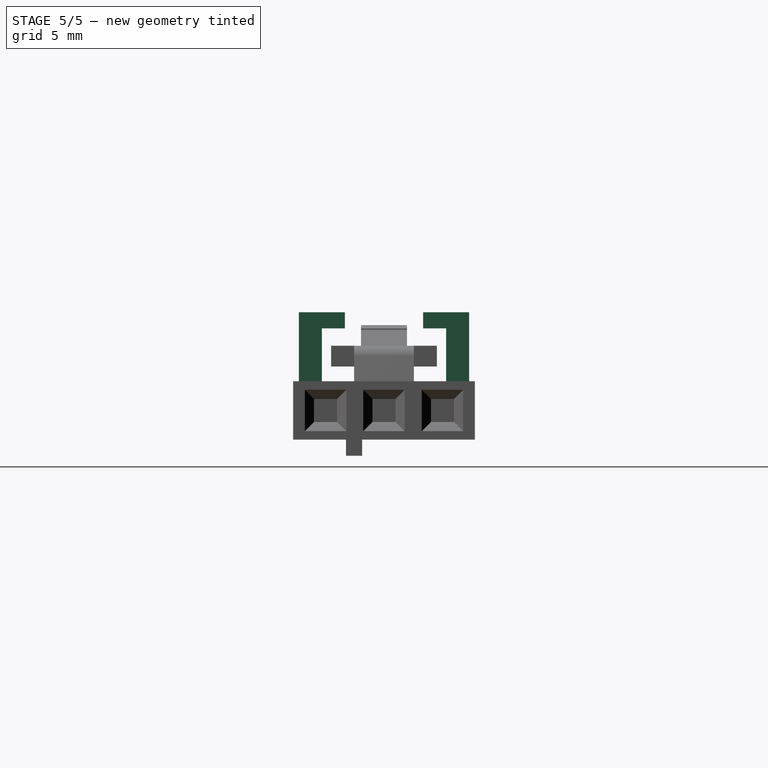
[diagram: stage 5 of 5 — right view after this stage's code; geometry added in this stage tinted green]
FEATURE [Sketcher::SketchObject] Sketch009
  ExternalGeometry = -> [Pad004]
  Placement = pos=(0,0,0) rot=(-1,0,0;1.5708rad)
  Support = -> Pad004 [Face7]
  sketch-geometry (4):
    g0: LineSegment StartX=4.4 StartY=-4.27 StartZ=0 EndX=6 EndY=-4.27 EndZ=0
    g1: LineSegment StartX=6 StartY=-4.27 StartZ=0 EndX=6 EndY=-3.57 EndZ=0
    g2: LineSegment StartX=6 StartY=-3.57 StartZ=0 EndX=4.4 EndY=-3.57 EndZ=0
    g3: LineSegment StartX=4.4 StartY=-3.57 StartZ=0 EndX=4.4 EndY=-4.27 EndZ=0
  constraints (11):
    c: Coincident(g0,g1)
    c: Coincident(g1,g2)
    c: Coincident(g2,g3)
    c: Coincident(g3,g0)
    c: Horizontal(g0)
    c: Horizontal(g2)
    c: Vertical(g1)
    c: Vertical(g3)
    c: Coincident(g0,g-3)
    c: Coincident(g0,g-3)
    c: DistanceY(g1,g1) = 0.7
FEATURE [PartDesign::Pad] Pad005
  Length = 1
  Length2 = 100
  Placement = pos=(0,0,0) rot=(-1,0,0;4.71239rad)
  Sketch = -> Sketch009
  Type = 0
FEATURE [Part::FeaturePython] Clone  label="side1"  # Draft clone (typed FeaturePython)
  Objects = -> [Pad005]
  Placement = pos=(0,-2.7,0) rot=(-1,0,0;4.71239rad)
  Scale = (1,1,1)
FEATURE [Part::Mirroring] Part__Mirroring  label="side1 (Mirror #1)"
  Base = (0,0,0)
  Normal = (0,1,0)
  Source = -> Clone
FEATURE [Part::MultiFuse] Fusion  label="top-side-part1"
  Shapes = -> [Part__Mirroring,Clone]
FEATURE [App::DocumentObjectGroup] Grupo003  label="top-side-part-src"
  Group = -> [Pad004,Pad005,Fusion]
FEATURE [Part::FeaturePython] Clone001  label="top-side-part"  # Draft clone (typed FeaturePython)
  Objects = -> [Fusion]
  Scale = (1,1,1)
FEATURE [Part::MultiFuse] Fusion001  label="connector-shell"
  Shapes = -> [Clone003,Clone002,Clone001]
FEATURE [Part::FeaturePython] Clone004  label="Connector"  # Draft clone (typed FeaturePython)
  Objects = -> [Fusion001]
  Scale = (1,1,1)
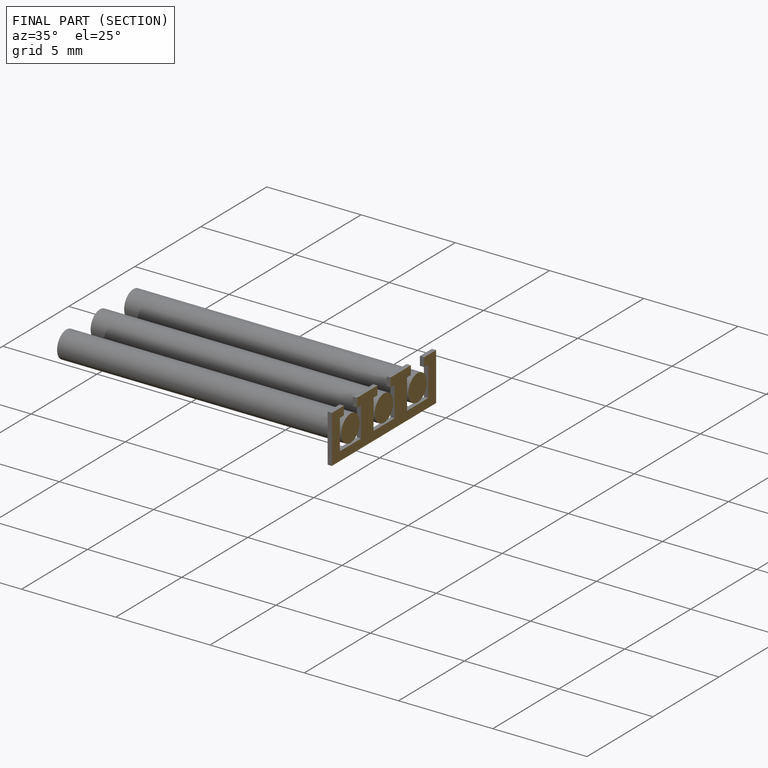
[diagram: finished part — half-section view (interior)]
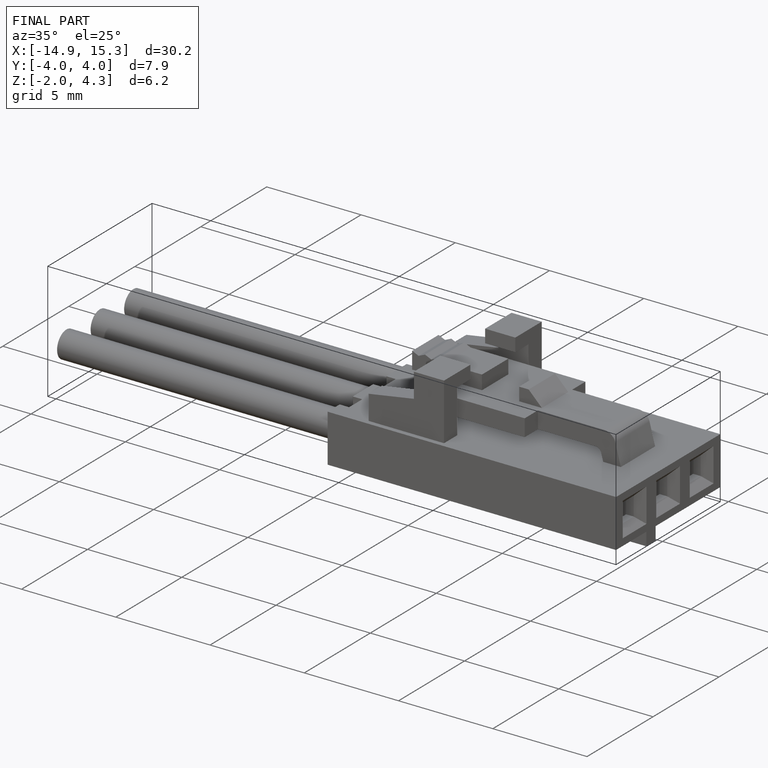
[diagram: finished part — iso view with bounding-box wireframe]
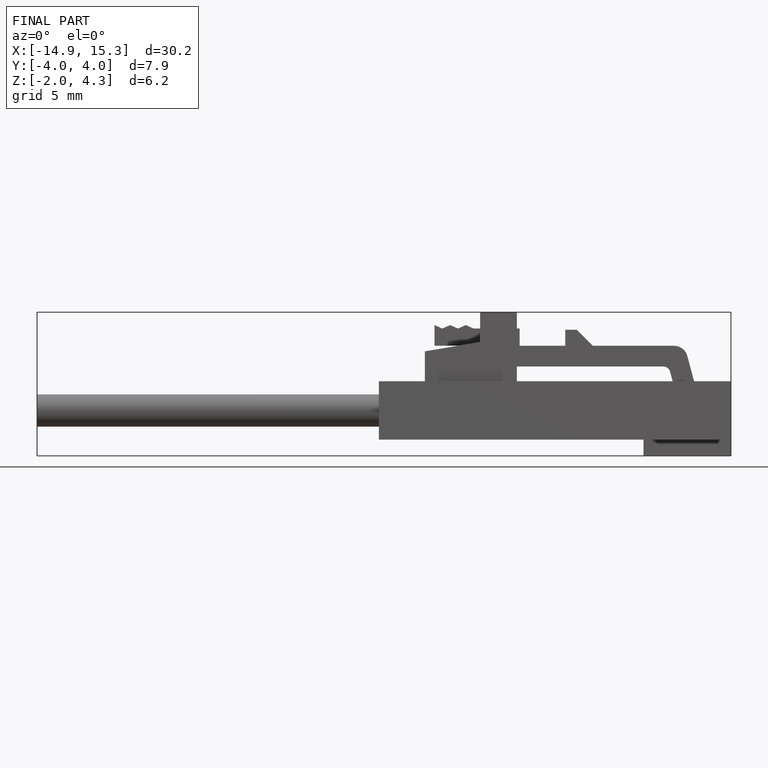
[diagram: finished part — front view with bounding-box wireframe]
